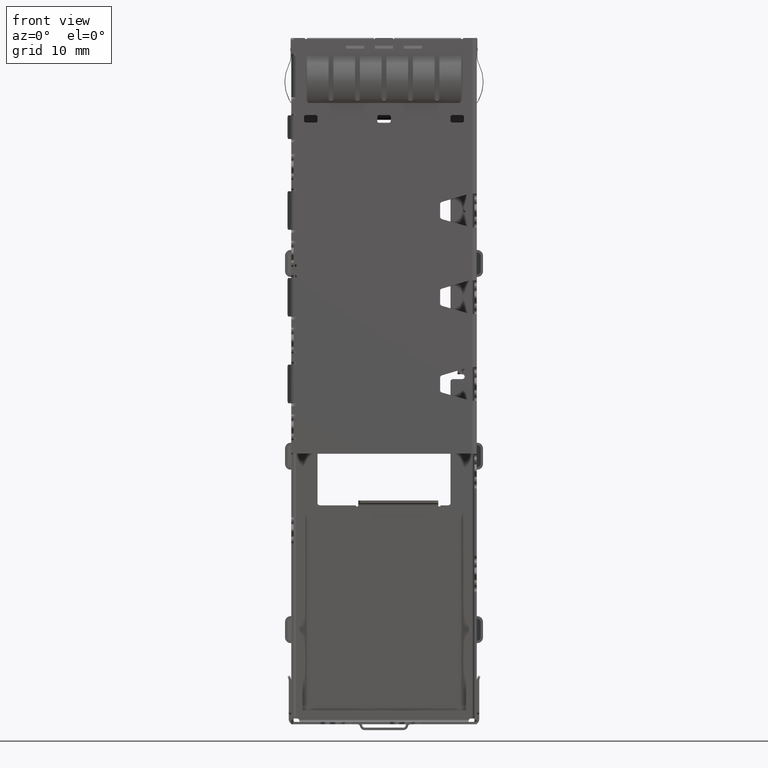
[diagram: clean part render]
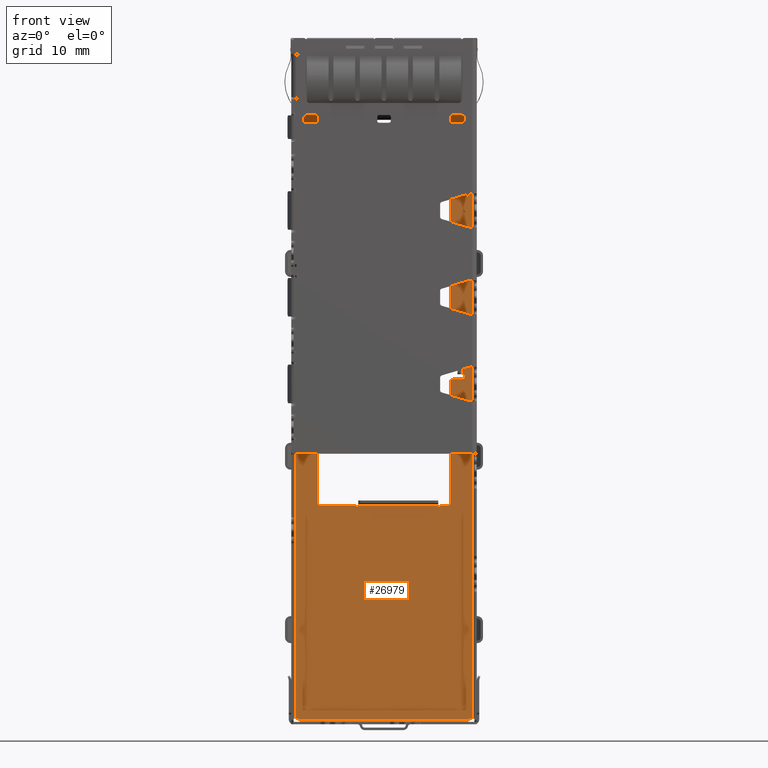
[diagram: same view with one face highlighted and labeled with its STEP entity id]
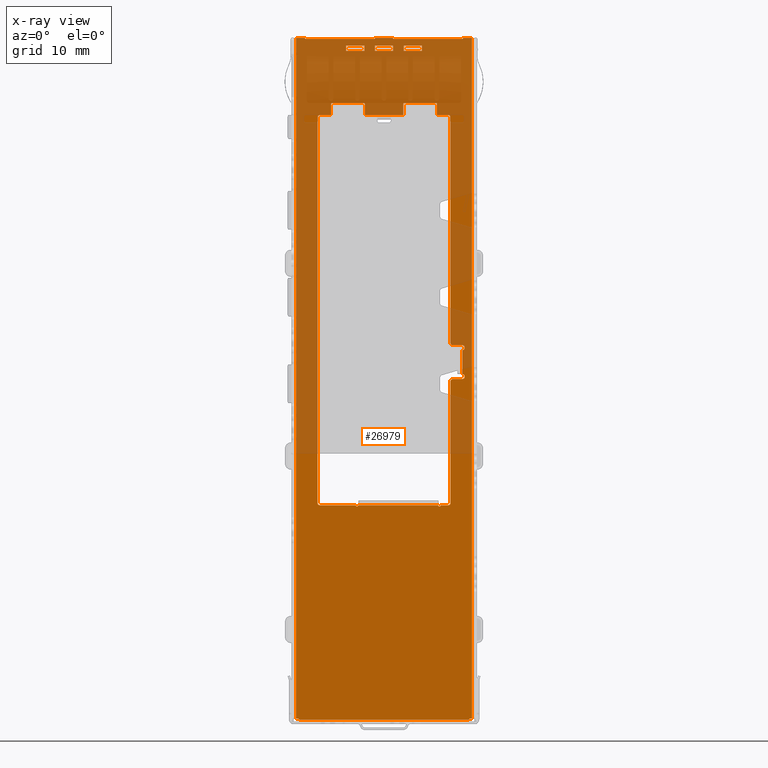
[diagram: x-ray of the same camera — body ghosted, the highlighted face saturated]
A machine part, front view. The second image highlights one B-rep face of the part: STEP entity #26979.
The next image is the same camera in x-ray: the body ghosted, the highlighted face saturated — about 37% of this face is hidden behind the body in this view.
In plain terms, the highlighted planar face has unit normal (0, -1, 0).
Its self-contained STEP definition (entity closure, byte-faithful):
#53 = AXIS2_PLACEMENT_3D ( 'NONE', #49789, #61333, #7563 ) ;
#523 = CARTESIAN_POINT ( 'NONE',  ( 5.400000000000000355, 9.150000000000000355, -6.850000000000000533 ) ) ;
#535 = CARTESIAN_POINT ( 'NONE',  ( -9.125000000000000000, 9.150000000000000355, 0.0000000000000000000 ) ) ;
#603 = EDGE_CURVE ( 'NONE', #43315, #46679, #68325, .T. ) ;
#734 = CARTESIAN_POINT ( 'NONE',  ( 6.649999999999999467, 9.150000000000000355, -8.000000000000000000 ) ) ;
#757 = DIRECTION ( 'NONE',  ( 0.0000000000000000000, 0.0000000000000000000, -1.000000000000000000 ) ) ;
#790 = CARTESIAN_POINT ( 'NONE',  ( -3.950000000000000178, 9.150000000000000355, -70.96999999999999886 ) ) ;
#986 = VECTOR ( 'NONE', #1740, 1000.000000000000000 ) ;
#1044 = VECTOR ( 'NONE', #12786, 1000.000000000000000 ) ;
#1375 = CARTESIAN_POINT ( 'NONE',  ( 2.000000000000000000, 9.150000000000000355, -6.750000000000000000 ) ) ;
#1432 = EDGE_CURVE ( 'NONE', #4398, #26246, #12142, .T. ) ;
#1451 = CARTESIAN_POINT ( 'NONE',  ( -2.925000000000000266, 9.150000000000000355, -48.50000000000000000 ) ) ;
#1500 = CARTESIAN_POINT ( 'NONE',  ( 8.125000000000000000, 9.150000000000000355, -32.39999999999999858 ) ) ;
#1614 = EDGE_CURVE ( 'NONE', #41677, #9290, #30385, .T. ) ;
#1644 = LINE ( 'NONE', #535, #34936 ) ;
#1668 = VERTEX_POINT ( 'NONE', #38505 ) ;
#1674 = DIRECTION ( 'NONE',  ( 0.0000000000000000000, 0.0000000000000000000, -1.000000000000000000 ) ) ;
#1683 = CARTESIAN_POINT ( 'NONE',  ( 9.050000000000000711, 9.150000000000000355, -70.62000000000000455 ) ) ;
#1740 = DIRECTION ( 'NONE',  ( 1.000000000000000000, 0.0000000000000000000, -1.224646799147351975E-16 ) ) ;
#1824 = ORIENTED_EDGE ( 'NONE', *, *, #65324, .F. ) ;
#1911 = VECTOR ( 'NONE', #14583, 1000.000000000000000 ) ;
#2111 = ORIENTED_EDGE ( 'NONE', *, *, #58626, .T. ) ;
#2236 = EDGE_CURVE ( 'NONE', #52283, #15476, #63063, .T. ) ;
#2579 = EDGE_CURVE ( 'NONE', #43315, #26636, #16773, .T. ) ;
#2619 = DIRECTION ( 'NONE',  ( 0.0000000000000000000, -1.000000000000000000, 0.0000000000000000000 ) ) ;
#2793 = ORIENTED_EDGE ( 'NONE', *, *, #40218, .F. ) ;
#3039 = AXIS2_PLACEMENT_3D ( 'NONE', #15722, #47935, #32007 ) ;
#3187 = DIRECTION ( 'NONE',  ( 0.0000000000000000000, 1.000000000000000000, 0.0000000000000000000 ) ) ;
#3365 = EDGE_CURVE ( 'NONE', #60256, #65585, #31707, .T. ) ;
#3455 = LINE ( 'NONE', #67800, #58590 ) ;
#3716 = EDGE_CURVE ( 'NONE', #7042, #6598, #49278, .T. ) ;
#3759 = CARTESIAN_POINT ( 'NONE',  ( -6.649999999999999467, 9.150000000000000355, -8.250000000000000000 ) ) ;
#3940 = VERTEX_POINT ( 'NONE', #50301 ) ;
#4149 = DIRECTION ( 'NONE',  ( 0.0000000000000000000, -1.000000000000000000, 0.0000000000000000000 ) ) ;
#4177 = AXIS2_PLACEMENT_3D ( 'NONE', #53085, #31939, #58481 ) ;
#4216 = CARTESIAN_POINT ( 'NONE',  ( 2.100000000000000089, 9.150000000000000355, -6.850000000000000533 ) ) ;
#4331 = ORIENTED_EDGE ( 'NONE', *, *, #11635, .T. ) ;
#4398 = VERTEX_POINT ( 'NONE', #25075 ) ;
#4695 = DIRECTION ( 'NONE',  ( 0.0000000000000000000, 0.0000000000000000000, -1.000000000000000000 ) ) ;
#4717 = DIRECTION ( 'NONE',  ( 1.000000000000000000, 0.0000000000000000000, 0.0000000000000000000 ) ) ;
#4726 = DIRECTION ( 'NONE',  ( -1.000000000000000000, 0.0000000000000000000, 0.0000000000000000000 ) ) ;
#4837 = VERTEX_POINT ( 'NONE', #36381 ) ;
#4844 = CARTESIAN_POINT ( 'NONE',  ( -2.674999999999999822, 9.150000000000000355, -48.50000000000000000 ) ) ;
#4870 = DIRECTION ( 'NONE',  ( -1.971276677246379901E-16, 0.0000000000000000000, -1.000000000000000000 ) ) ;
#5608 = CARTESIAN_POINT ( 'NONE',  ( 6.899999999999999467, 9.150000000000000355, -31.64999999999999858 ) ) ;
#5761 = ORIENTED_EDGE ( 'NONE', *, *, #43987, .F. ) ;
#5764 = VERTEX_POINT ( 'NONE', #46506 ) ;
#5778 = EDGE_CURVE ( 'NONE', #21400, #20888, #57394, .T. ) ;
#5951 = VECTOR ( 'NONE', #42635, 1000.000000000000000 ) ;
#6059 = CARTESIAN_POINT ( 'NONE',  ( 6.400000000000000355, 9.150000000000000355, -8.000000000000000000 ) ) ;
#6173 = DIRECTION ( 'NONE',  ( 0.0000000000000000000, 0.0000000000000000000, -1.000000000000000000 ) ) ;
#6225 = CIRCLE ( 'NONE', #3039, 0.1000000000000000056 ) ;
#6359 = ORIENTED_EDGE ( 'NONE', *, *, #31889, .F. ) ;
#6598 = VERTEX_POINT ( 'NONE', #734 ) ;
#6656 = CIRCLE ( 'NONE', #14942, 0.1250000000000001110 ) ;
#6922 = CARTESIAN_POINT ( 'NONE',  ( -9.050000000000000711, 9.150000000000000355, -70.62000000000000455 ) ) ;
#6952 = CIRCLE ( 'NONE', #14631, 0.1000000000000000056 ) ;
#7042 = VERTEX_POINT ( 'NONE', #31966 ) ;
#7100 = CIRCLE ( 'NONE', #53, 0.2500000000000002220 ) ;
#7137 = ORIENTED_EDGE ( 'NONE', *, *, #1432, .T. ) ;
#7293 = DIRECTION ( 'NONE',  ( 0.0000000000000000000, -1.000000000000000000, 0.0000000000000000000 ) ) ;
#7539 = VERTEX_POINT ( 'NONE', #32114 ) ;
#7563 = DIRECTION ( 'NONE',  ( 0.0000000000000000000, 0.0000000000000000000, -1.000000000000000000 ) ) ;
#7617 = CARTESIAN_POINT ( 'NONE',  ( 0.9500000000000130562, 9.150000000000000355, -70.96999999999999886 ) ) ;
#7776 = CARTESIAN_POINT ( 'NONE',  ( 6.899999999999999467, 9.150000000000000355, -35.64999999999999858 ) ) ;
#8334 = CARTESIAN_POINT ( 'NONE',  ( 8.125000000000000000, 9.150000000000000355, -31.89999999999999858 ) ) ;
#8416 = VERTEX_POINT ( 'NONE', #69220 ) ;
#8455 = CIRCLE ( 'NONE', #36208, 0.2999999999999947153 ) ;
#8498 = DIRECTION ( 'NONE',  ( 0.0000000000000000000, 0.0000000000000000000, -1.000000000000000000 ) ) ;
#9290 = VERTEX_POINT ( 'NONE', #62147 ) ;
#9329 = CARTESIAN_POINT ( 'NONE',  ( -0.8385983181181020374, 9.150000000000000355, -0.09999999999999820144 ) ) ;
#9394 = DIRECTION ( 'NONE',  ( 0.0000000000000000000, 0.0000000000000000000, -1.000000000000000000 ) ) ;
#9700 = CARTESIAN_POINT ( 'NONE',  ( 8.375000000000000000, 9.150000000000000355, -31.89999999999999858 ) ) ;
#9779 = PLANE ( 'NONE',  #33050 ) ;
#9790 = CIRCLE ( 'NONE', #54703, 0.2999999999999947153 ) ;
#9853 = CARTESIAN_POINT ( 'NONE',  ( 6.899999999999999467, 9.150000000000000355, -48.25000000000000000 ) ) ;
#10264 = ORIENTED_EDGE ( 'NONE', *, *, #68865, .T. ) ;
#10329 = DIRECTION ( 'NONE',  ( 0.0000000000000000000, -1.000000000000000000, 0.0000000000000000000 ) ) ;
#10483 = CARTESIAN_POINT ( 'NONE',  ( -0.9500000000000130562, 9.150000000000000355, -70.96999999999999886 ) ) ;
#10579 = EDGE_CURVE ( 'NONE', #42864, #42195, #27558, .T. ) ;
#10635 = DIRECTION ( 'NONE',  ( 0.0000000000000000000, -1.000000000000000000, 0.0000000000000000000 ) ) ;
#10724 = VERTEX_POINT ( 'NONE', #39311 ) ;
#10848 = ORIENTED_EDGE ( 'NONE', *, *, #49648, .F. ) ;
#10987 = CIRCLE ( 'NONE', #11076, 0.1000000000000000056 ) ;
#11037 = CARTESIAN_POINT ( 'NONE',  ( 8.125000000000000000, 9.150000000000000355, -35.14999999999999858 ) ) ;
#11050 = VERTEX_POINT ( 'NONE', #64132 ) ;
#11076 = AXIS2_PLACEMENT_3D ( 'NONE', #59893, #11948, #38954 ) ;
#11143 = EDGE_CURVE ( 'NONE', #57184, #20486, #15085, .T. ) ;
#11233 = ORIENTED_EDGE ( 'NONE', *, *, #3716, .F. ) ;
#11253 = VERTEX_POINT ( 'NONE', #7776 ) ;
#11402 = CARTESIAN_POINT ( 'NONE',  ( 6.649999999999999467, 9.150000000000000355, -48.25000000000000000 ) ) ;
#11487 = DIRECTION ( 'NONE',  ( 0.0000000000000000000, 0.0000000000000000000, -1.000000000000000000 ) ) ;
#11518 = ORIENTED_EDGE ( 'NONE', *, *, #30978, .F. ) ;
#11633 = DIRECTION ( 'NONE',  ( 0.0000000000000000000, 0.0000000000000000000, -1.000000000000000000 ) ) ;
#11635 = EDGE_CURVE ( 'NONE', #68194, #52863, #34172, .T. ) ;
#11677 = CARTESIAN_POINT ( 'NONE',  ( 6.649999999999999467, 9.150000000000000355, -48.50000000000000000 ) ) ;
#11948 = DIRECTION ( 'NONE',  ( 0.0000000000000000000, 1.000000000000000000, 0.0000000000000000000 ) ) ;
#11998 = LINE ( 'NONE', #24544, #19465 ) ;
#12082 = DIRECTION ( 'NONE',  ( -1.734723475976804876E-16, 0.0000000000000000000, 1.000000000000000000 ) ) ;
#12142 = CIRCLE ( 'NONE', #4177, 0.1000000000000000056 ) ;
#12190 = CARTESIAN_POINT ( 'NONE',  ( 8.125000000000000000, 9.150000000000000355, -32.39999999999999858 ) ) ;
#12398 = CARTESIAN_POINT ( 'NONE',  ( -9.125000000000000000, 9.150000000000000355, 0.0000000000000000000 ) ) ;
#12407 = VERTEX_POINT ( 'NONE', #26286 ) ;
#12427 = EDGE_CURVE ( 'NONE', #17559, #11253, #39052, .T. ) ;
#12621 = CARTESIAN_POINT ( 'NONE',  ( 8.291421356237309581, 9.150000000000000355, 0.0000000000000000000 ) ) ;
#12705 = CARTESIAN_POINT ( 'NONE',  ( -0.9252008584965458748, 9.150000000000000355, -0.04999999999999810152 ) ) ;
#12786 = DIRECTION ( 'NONE',  ( 0.0000000000000000000, 0.0000000000000000000, -1.000000000000000000 ) ) ;
#13037 = CARTESIAN_POINT ( 'NONE',  ( -0.9499999999999999556, 9.150000000000000355, -0.8000000000000000444 ) ) ;
#13071 = ORIENTED_EDGE ( 'NONE', *, *, #39976, .T. ) ;
#13322 = DIRECTION ( 'NONE',  ( 0.0000000000000000000, 1.000000000000000000, 0.0000000000000000000 ) ) ;
#13776 = VERTEX_POINT ( 'NONE', #45716 ) ;
#13790 = DIRECTION ( 'NONE',  ( -4.336808689942017736E-15, 0.0000000000000000000, -1.000000000000000000 ) ) ;
#13911 = CARTESIAN_POINT ( 'NONE',  ( 9.125000000000000000, 9.150000000000000355, -70.96999999999999886 ) ) ;
#13915 = CARTESIAN_POINT ( 'NONE',  ( 8.125000000000000000, 9.150000000000000355, -34.89999999999999858 ) ) ;
#13931 = ORIENTED_EDGE ( 'NONE', *, *, #47088, .F. ) ;
#14016 = ORIENTED_EDGE ( 'NONE', *, *, #1614, .F. ) ;
#14048 = LINE ( 'NONE', #38306, #60092 ) ;
#14453 = VECTOR ( 'NONE', #60694, 1000.000000000000000 ) ;
#14523 = AXIS2_PLACEMENT_3D ( 'NONE', #66916, #13322, #13790 ) ;
#14583 = DIRECTION ( 'NONE',  ( 1.000000000000000000, 0.0000000000000000000, 0.0000000000000000000 ) ) ;
#14631 = AXIS2_PLACEMENT_3D ( 'NONE', #69021, #10329, #52833 ) ;
#14632 = EDGE_CURVE ( 'NONE', #59869, #7539, #40428, .T. ) ;
#14656 = DIRECTION ( 'NONE',  ( 0.0000000000000000000, 0.0000000000000000000, -1.000000000000000000 ) ) ;
#14702 = CARTESIAN_POINT ( 'NONE',  ( -2.050000000000000266, 9.150000000000000355, -0.8000000000000000444 ) ) ;
#14716 = VECTOR ( 'NONE', #6173, 1000.000000000000000 ) ;
#14735 = VECTOR ( 'NONE', #34391, 1000.000000000000000 ) ;
#14752 = VECTOR ( 'NONE', #4726, 1000.000000000000000 ) ;
#14882 = CARTESIAN_POINT ( 'NONE',  ( -0.8385983181181020374, 9.150000000000000355, 1.835624155907465036E-15 ) ) ;
#14942 = AXIS2_PLACEMENT_3D ( 'NONE', #57528, #30538, #9394 ) ;
#14966 = ORIENTED_EDGE ( 'NONE', *, *, #51195, .F. ) ;
#15085 = LINE ( 'NONE', #44167, #40112 ) ;
#15096 = VECTOR ( 'NONE', #31801, 1000.000000000000000 ) ;
#15109 = LINE ( 'NONE', #18238, #986 ) ;
#15124 = DIRECTION ( 'NONE',  ( 0.0000000000000000000, 0.0000000000000000000, 1.000000000000000000 ) ) ;
#15296 = FACE_BOUND ( 'NONE', #16238, .T. ) ;
#15336 = VERTEX_POINT ( 'NONE', #63541 ) ;
#15382 = LINE ( 'NONE', #40398, #68984 ) ;
#15476 = VERTEX_POINT ( 'NONE', #37686 ) ;
#15628 = CARTESIAN_POINT ( 'NONE',  ( 6.400000000000000355, 9.150000000000000355, -8.000000000000000000 ) ) ;
#15719 = CARTESIAN_POINT ( 'NONE',  ( 8.291421356237309581, 9.150000000000000355, -0.1000000000000000056 ) ) ;
#15722 = CARTESIAN_POINT ( 'NONE',  ( -8.108578643762688998, 9.150000000000000355, 2.032879073410320025E-15 ) ) ;
#15805 = ORIENTED_EDGE ( 'NONE', *, *, #14632, .T. ) ;
#15822 = DIRECTION ( 'NONE',  ( 0.0000000000000000000, 0.0000000000000000000, 1.000000000000000000 ) ) ;
#15896 = VECTOR ( 'NONE', #62519, 1000.000000000000000 ) ;
#16165 = ORIENTED_EDGE ( 'NONE', *, *, #18942, .F. ) ;
#16194 = FACE_BOUND ( 'NONE', #39648, .T. ) ;
#16219 = DIRECTION ( 'NONE',  ( 0.7071067811865525687, 0.0000000000000000000, 0.7071067811865425767 ) ) ;
#16238 = EDGE_LOOP ( 'NONE', ( #14966, #18889, #42259, #13931 ) ) ;
#16537 = EDGE_CURVE ( 'NONE', #15336, #42864, #16657, .T. ) ;
#16571 = DIRECTION ( 'NONE',  ( 0.0000000000000000000, 1.000000000000000000, 0.0000000000000000000 ) ) ;
#16657 = LINE ( 'NONE', #7617, #18322 ) ;
#16773 = LINE ( 'NONE', #59067, #5951 ) ;
#17037 = VERTEX_POINT ( 'NONE', #53363 ) ;
#17114 = CIRCLE ( 'NONE', #64873, 0.2500000000000002220 ) ;
#17424 = AXIS2_PLACEMENT_3D ( 'NONE', #47319, #53237, #58860 ) ;
#17435 = ORIENTED_EDGE ( 'NONE', *, *, #30465, .F. ) ;
#17452 = LINE ( 'NONE', #9700, #65193 ) ;
#17557 = CARTESIAN_POINT ( 'NONE',  ( 6.400000000000000355, 9.150000000000000355, -8.000000000000000000 ) ) ;
#17559 = VERTEX_POINT ( 'NONE', #9853 ) ;
#17942 = DIRECTION ( 'NONE',  ( 0.0000000000000000000, -1.000000000000000000, 0.0000000000000000000 ) ) ;
#17988 = VECTOR ( 'NONE', #66166, 1000.000000000000000 ) ;
#18238 = CARTESIAN_POINT ( 'NONE',  ( 0.9000000000000000222, 9.150000000000000355, 1.622707269378834942E-15 ) ) ;
#18322 = VECTOR ( 'NONE', #34126, 1000.000000000000000 ) ;
#18846 = EDGE_CURVE ( 'NONE', #15476, #30058, #53080, .T. ) ;
#18889 = ORIENTED_EDGE ( 'NONE', *, *, #10579, .F. ) ;
#18942 = EDGE_CURVE ( 'NONE', #11050, #24380, #45513, .T. ) ;
#18985 = CARTESIAN_POINT ( 'NONE',  ( 8.125000000000000000, 9.150000000000000355, -35.14999999999999858 ) ) ;
#19093 = DIRECTION ( 'NONE',  ( 0.0000000000000000000, -1.000000000000000000, 0.0000000000000000000 ) ) ;
#19225 = CARTESIAN_POINT ( 'NONE',  ( -6.899999999999999467, 9.150000000000000355, -8.250000000000000000 ) ) ;
#19228 = AXIS2_PLACEMENT_3D ( 'NONE', #523, #42931, #27246 ) ;
#19465 = VECTOR ( 'NONE', #35912, 1000.000000000000000 ) ;
#19486 = VERTEX_POINT ( 'NONE', #13915 ) ;
#19638 = EDGE_CURVE ( 'NONE', #54754, #8416, #27847, .T. ) ;
#20054 = CIRCLE ( 'NONE', #29777, 0.09999999999999999167 ) ;
#20089 = CARTESIAN_POINT ( 'NONE',  ( -6.899999999999999467, 9.150000000000000355, -48.25000000000000000 ) ) ;
#20217 = ORIENTED_EDGE ( 'NONE', *, *, #20952, .T. ) ;
#20252 = LINE ( 'NONE', #26495, #23598 ) ;
#20486 = VERTEX_POINT ( 'NONE', #14702 ) ;
#20528 = CARTESIAN_POINT ( 'NONE',  ( 7.150000000000000355, 9.150000000000000355, -35.39999999999999858 ) ) ;
#20545 = CARTESIAN_POINT ( 'NONE',  ( -8.179289321881340058, 9.150000000000000355, -0.07071067811865310027 ) ) ;
#20551 = ORIENTED_EDGE ( 'NONE', *, *, #52011, .T. ) ;
#20686 = LINE ( 'NONE', #35042, #56693 ) ;
#20735 = ORIENTED_EDGE ( 'NONE', *, *, #55944, .F. ) ;
#20888 = VERTEX_POINT ( 'NONE', #54877 ) ;
#20952 = EDGE_CURVE ( 'NONE', #65510, #10724, #54492, .T. ) ;
#21239 = VECTOR ( 'NONE', #49297, 1000.000000000000000 ) ;
#21400 = VERTEX_POINT ( 'NONE', #34347 ) ;
#21760 = VECTOR ( 'NONE', #42476, 1000.000000000000000 ) ;
#22134 = ORIENTED_EDGE ( 'NONE', *, *, #38913, .F. ) ;
#22601 = VECTOR ( 'NONE', #60135, 1000.000000000000000 ) ;
#22605 = AXIS2_PLACEMENT_3D ( 'NONE', #4216, #68041, #46889 ) ;
#22886 = DIRECTION ( 'NONE',  ( -1.000000000000000000, 0.0000000000000000000, 0.0000000000000000000 ) ) ;
#22957 = CARTESIAN_POINT ( 'NONE',  ( -9.125000000000000000, 9.150000000000000355, -1.350000000000000089 ) ) ;
#23064 = LINE ( 'NONE', #12190, #14716 ) ;
#23289 = AXIS2_PLACEMENT_3D ( 'NONE', #3759, #19093, #40550 ) ;
#23502 = CARTESIAN_POINT ( 'NONE',  ( 9.125000000000000000, 9.150000000000000355, -70.62000000000000455 ) ) ;
#23533 = EDGE_CURVE ( 'NONE', #35080, #33300, #36458, .T. ) ;
#23598 = VECTOR ( 'NONE', #64218, 1000.000000000000000 ) ;
#24055 = ORIENTED_EDGE ( 'NONE', *, *, #5778, .T. ) ;
#24104 = CARTESIAN_POINT ( 'NONE',  ( -3.950000000000000178, 9.150000000000000355, -0.8000000000000000444 ) ) ;
#24280 = ORIENTED_EDGE ( 'NONE', *, *, #18846, .F. ) ;
#24380 = VERTEX_POINT ( 'NONE', #30699 ) ;
#24463 = ORIENTED_EDGE ( 'NONE', *, *, #11143, .F. ) ;
#24544 = CARTESIAN_POINT ( 'NONE',  ( 6.899999999999999467, 9.150000000000000355, -48.25000000000000000 ) ) ;
#24558 = EDGE_LOOP ( 'NONE', ( #31821, #7137, #52114, #27026, #13071, #51026, #30818, #20735, #37785, #61251, #17435, #46481, #41703, #32226, #51568, #29724, #30590, #30210, #36973, #11518, #27086, #6359 ) ) ;
#25075 = CARTESIAN_POINT ( 'NONE',  ( 0.9252008584965458748, 9.150000000000000355, -0.04999999999999819866 ) ) ;
#25115 = CARTESIAN_POINT ( 'NONE',  ( 1.011803398874989934, 9.150000000000000355, -0.1000000000000030032 ) ) ;
#25366 = DIRECTION ( 'NONE',  ( 1.000000000000000000, 0.0000000000000000000, 0.0000000000000000000 ) ) ;
#25411 = VECTOR ( 'NONE', #15822, 1000.000000000000000 ) ;
#25782 = LINE ( 'NONE', #10483, #59367 ) ;
#26027 = LINE ( 'NONE', #40940, #1911 ) ;
#26055 = CARTESIAN_POINT ( 'NONE',  ( -9.125000000000000000, 9.150000000000000355, -70.96999999999999886 ) ) ;
#26168 = EDGE_CURVE ( 'NONE', #8416, #59481, #7100, .T. ) ;
#26246 = VERTEX_POINT ( 'NONE', #56377 ) ;
#26286 = CARTESIAN_POINT ( 'NONE',  ( -9.125000000000000000, 9.150000000000000355, 0.0000000000000000000 ) ) ;
#26354 = AXIS2_PLACEMENT_3D ( 'NONE', #57642, #36213, #31315 ) ;
#26495 = CARTESIAN_POINT ( 'NONE',  ( -9.125000000000000000, 9.150000000000000355, -0.8000000000000000444 ) ) ;
#26636 = VERTEX_POINT ( 'NONE', #1683 ) ;
#26979 = ADVANCED_FACE ( 'NONE', ( #55498, #41202, #15296, #16194, #62976 ), #9779, .T. ) ;
#27026 = ORIENTED_EDGE ( 'NONE', *, *, #41404, .T. ) ;
#27067 = EDGE_CURVE ( 'NONE', #57179, #58668, #20252, .T. ) ;
#27086 = ORIENTED_EDGE ( 'NONE', *, *, #65728, .T. ) ;
#27104 = LINE ( 'NONE', #790, #50541 ) ;
#27147 = AXIS2_PLACEMENT_3D ( 'NONE', #15719, #10635, #43045 ) ;
#27152 = CARTESIAN_POINT ( 'NONE',  ( 6.649999999999999467, 9.150000000000000355, -8.250000000000000000 ) ) ;
#27219 = EDGE_CURVE ( 'NONE', #13776, #5764, #45316, .T. ) ;
#27246 = DIRECTION ( 'NONE',  ( 0.0000000000000000000, 0.0000000000000000000, -1.000000000000000000 ) ) ;
#27482 = VERTEX_POINT ( 'NONE', #40040 ) ;
#27558 = LINE ( 'NONE', #38380, #54419 ) ;
#27580 = DIRECTION ( 'NONE',  ( -1.000000000000000000, 0.0000000000000000000, 0.0000000000000000000 ) ) ;
#27847 = CIRCLE ( 'NONE', #65985, 0.2500000000000002220 ) ;
#27936 = CARTESIAN_POINT ( 'NONE',  ( -2.000000000000000000, 9.150000000000000355, -6.850000000000000533 ) ) ;
#27959 = LINE ( 'NONE', #63637, #69082 ) ;
#27989 = CARTESIAN_POINT ( 'NONE',  ( -2.100000000000000089, 9.150000000000000355, -6.750000000000000000 ) ) ;
#28978 = LINE ( 'NONE', #68729, #68439 ) ;
#29070 = DIRECTION ( 'NONE',  ( 0.0000000000000000000, 0.0000000000000000000, -1.000000000000000000 ) ) ;
#29081 = VERTEX_POINT ( 'NONE', #62273 ) ;
#29248 = CARTESIAN_POINT ( 'NONE',  ( -5.500000000000000000, 9.150000000000000355, -6.850000000000000533 ) ) ;
#29373 = LINE ( 'NONE', #62885, #47770 ) ;
#29451 = EDGE_CURVE ( 'NONE', #65747, #4398, #48970, .T. ) ;
#29625 = CARTESIAN_POINT ( 'NONE',  ( 3.950000000000000178, 9.150000000000000355, -0.8000000000000000444 ) ) ;
#29719 = CARTESIAN_POINT ( 'NONE',  ( 8.108578643762688998, 9.150000000000000355, -0.1000000000000030032 ) ) ;
#29724 = ORIENTED_EDGE ( 'NONE', *, *, #2579, .F. ) ;
#29777 = AXIS2_PLACEMENT_3D ( 'NONE', #9329, #63539, #14656 ) ;
#29873 = VERTEX_POINT ( 'NONE', #48959 ) ;
#30058 = VERTEX_POINT ( 'NONE', #55628 ) ;
#30193 = CARTESIAN_POINT ( 'NONE',  ( -6.649999999999999467, 9.150000000000000355, -48.50000000000000000 ) ) ;
#30210 = ORIENTED_EDGE ( 'NONE', *, *, #50247, .F. ) ;
#30326 = EDGE_CURVE ( 'NONE', #13776, #4837, #57297, .T. ) ;
#30385 = LINE ( 'NONE', #48361, #21239 ) ;
#30465 = EDGE_CURVE ( 'NONE', #37301, #12407, #39632, .T. ) ;
#30538 = DIRECTION ( 'NONE',  ( 0.0000000000000000000, -1.000000000000000000, 0.0000000000000000000 ) ) ;
#30590 = ORIENTED_EDGE ( 'NONE', *, *, #603, .T. ) ;
#30664 = CARTESIAN_POINT ( 'NONE',  ( -0.9499999999999999556, 9.150000000000000355, -1.350000000000000089 ) ) ;
#30699 = CARTESIAN_POINT ( 'NONE',  ( 3.950000000000000178, 9.150000000000000355, -1.350000000000000089 ) ) ;
#30792 = CIRCLE ( 'NONE', #33904, 0.2500000000000002220 ) ;
#30818 = ORIENTED_EDGE ( 'NONE', *, *, #31041, .T. ) ;
#30898 = LINE ( 'NONE', #15628, #21760 ) ;
#30916 = ORIENTED_EDGE ( 'NONE', *, *, #12427, .F. ) ;
#30948 = VECTOR ( 'NONE', #49296, 1000.000000000000000 ) ;
#30969 = DIRECTION ( 'NONE',  ( 8.673617379884039170E-17, 0.0000000000000000000, -1.000000000000000000 ) ) ;
#30978 = EDGE_CURVE ( 'NONE', #67616, #33100, #57177, .T. ) ;
#31041 = EDGE_CURVE ( 'NONE', #35080, #56343, #6225, .T. ) ;
#31106 = CARTESIAN_POINT ( 'NONE',  ( -6.649999999999999467, 9.150000000000000355, -48.25000000000000000 ) ) ;
#31161 = VECTOR ( 'NONE', #16219, 1000.000000000000000 ) ;
#31241 = VECTOR ( 'NONE', #50863, 1000.000000000000000 ) ;
#31315 = DIRECTION ( 'NONE',  ( 0.0000000000000000000, 0.0000000000000000000, -1.000000000000000000 ) ) ;
#31391 = CARTESIAN_POINT ( 'NONE',  ( 5.500000000000000000, 9.150000000000000355, -6.850000000000000533 ) ) ;
#31429 = EDGE_CURVE ( 'NONE', #55480, #3940, #6952, .T. ) ;
#31707 = LINE ( 'NONE', #54744, #22601 ) ;
#31801 = DIRECTION ( 'NONE',  ( -1.000000000000000000, 0.0000000000000000000, 0.0000000000000000000 ) ) ;
#31821 = ORIENTED_EDGE ( 'NONE', *, *, #29451, .T. ) ;
#31889 = EDGE_CURVE ( 'NONE', #65747, #53261, #26027, .T. ) ;
#31939 = DIRECTION ( 'NONE',  ( 0.0000000000000000000, -1.000000000000000000, 0.0000000000000000000 ) ) ;
#31966 = CARTESIAN_POINT ( 'NONE',  ( 6.899999999999999467, 9.150000000000000355, -8.250000000000000000 ) ) ;
#32007 = DIRECTION ( 'NONE',  ( 0.0000000000000000000, 0.0000000000000000000, -1.000000000000000000 ) ) ;
#32114 = CARTESIAN_POINT ( 'NONE',  ( 7.150000000000000355, 9.150000000000000355, -31.89999999999999858 ) ) ;
#32226 = ORIENTED_EDGE ( 'NONE', *, *, #44601, .F. ) ;
#32274 = DIRECTION ( 'NONE',  ( 0.0000000000000000000, -1.000000000000000000, 0.0000000000000000000 ) ) ;
#32699 = AXIS2_PLACEMENT_3D ( 'NONE', #66170, #17942, #1674 ) ;
#32934 = EDGE_CURVE ( 'NONE', #38499, #33100, #68693, .T. ) ;
#33050 = AXIS2_PLACEMENT_3D ( 'NONE', #68929, #63299, #46865 ) ;
#33100 = VERTEX_POINT ( 'NONE', #59494 ) ;
#33293 = EDGE_CURVE ( 'NONE', #24380, #57179, #3455, .T. ) ;
#33300 = VERTEX_POINT ( 'NONE', #41246 ) ;
#33338 = CIRCLE ( 'NONE', #23289, 0.2500000000000002220 ) ;
#33345 = ORIENTED_EDGE ( 'NONE', *, *, #57306, .F. ) ;
#33371 = DIRECTION ( 'NONE',  ( 0.0000000000000000000, 0.0000000000000000000, 1.000000000000000000 ) ) ;
#33381 = LINE ( 'NONE', #62298, #15896 ) ;
#33463 = LINE ( 'NONE', #17557, #67894 ) ;
#33884 = EDGE_CURVE ( 'NONE', #7539, #54754, #17452, .T. ) ;
#33904 = AXIS2_PLACEMENT_3D ( 'NONE', #11402, #49184, #11633 ) ;
#34126 = DIRECTION ( 'NONE',  ( -1.971276677246379901E-16, 0.0000000000000000000, 1.000000000000000000 ) ) ;
#34172 = CIRCLE ( 'NONE', #19228, 0.1000000000000002554 ) ;
#34217 = CARTESIAN_POINT ( 'NONE',  ( 9.050000000000000711, 9.150000000000000355, -70.92000000000000171 ) ) ;
#34325 = LINE ( 'NONE', #34868, #1044 ) ;
#34347 = CARTESIAN_POINT ( 'NONE',  ( 8.375000000000000000, 9.150000000000000355, -35.14999999999999858 ) ) ;
#34391 = DIRECTION ( 'NONE',  ( 0.0000000000000000000, 0.0000000000000000000, 1.000000000000000000 ) ) ;
#34520 = EDGE_CURVE ( 'NONE', #12407, #3940, #1644, .T. ) ;
#34582 = DIRECTION ( 'NONE',  ( -1.000000000000000000, 0.0000000000000000000, 0.0000000000000000000 ) ) ;
#34648 = ORIENTED_EDGE ( 'NONE', *, *, #3365, .F. ) ;
#34868 = CARTESIAN_POINT ( 'NONE',  ( 2.050000000000000266, 9.150000000000000355, -70.96999999999999886 ) ) ;
#34878 = CARTESIAN_POINT ( 'NONE',  ( -2.000000000000000000, 9.150000000000000355, -6.750000000000000000 ) ) ;
#34936 = VECTOR ( 'NONE', #43186, 1000.000000000000000 ) ;
#35042 = CARTESIAN_POINT ( 'NONE',  ( -9.125000000000000000, 9.150000000000000355, -70.62000000000000455 ) ) ;
#35080 = VERTEX_POINT ( 'NONE', #40720 ) ;
#35670 = EDGE_LOOP ( 'NONE', ( #45237, #37156, #55883, #16165 ) ) ;
#35894 = LINE ( 'NONE', #42347, #51924 ) ;
#35912 = DIRECTION ( 'NONE',  ( -1.734723475976804876E-16, 0.0000000000000000000, 1.000000000000000000 ) ) ;
#36208 = AXIS2_PLACEMENT_3D ( 'NONE', #39620, #2619, #55829 ) ;
#36213 = DIRECTION ( 'NONE',  ( 0.0000000000000000000, 1.000000000000000000, 0.0000000000000000000 ) ) ;
#36330 = DIRECTION ( 'NONE',  ( 0.0000000000000000000, 1.000000000000000000, 0.0000000000000000000 ) ) ;
#36381 = CARTESIAN_POINT ( 'NONE',  ( 2.100000000000000089, 9.150000000000000355, -6.750000000000000000 ) ) ;
#36449 = ORIENTED_EDGE ( 'NONE', *, *, #19638, .T. ) ;
#36458 = LINE ( 'NONE', #69302, #63377 ) ;
#36605 = CARTESIAN_POINT ( 'NONE',  ( 5.500000000000000000, 9.150000000000000355, -6.750000000000000000 ) ) ;
#36973 = ORIENTED_EDGE ( 'NONE', *, *, #32934, .T. ) ;
#37084 = CARTESIAN_POINT ( 'NONE',  ( 5.500000000000000000, 9.150000000000000355, -8.000000000000000000 ) ) ;
#37156 = ORIENTED_EDGE ( 'NONE', *, *, #27067, .F. ) ;
#37301 = VERTEX_POINT ( 'NONE', #64741 ) ;
#37544 = DIRECTION ( 'NONE',  ( 0.0000000000000000000, 0.0000000000000000000, -1.000000000000000000 ) ) ;
#37656 = VERTEX_POINT ( 'NONE', #30664 ) ;
#37686 = CARTESIAN_POINT ( 'NONE',  ( 5.875000000000000000, 9.150000000000000355, -48.50000000000000000 ) ) ;
#37785 = ORIENTED_EDGE ( 'NONE', *, *, #31429, .T. ) ;
#38027 = VERTEX_POINT ( 'NONE', #12705 ) ;
#38052 = DIRECTION ( 'NONE',  ( 1.000000000000000000, 0.0000000000000000000, 0.0000000000000000000 ) ) ;
#38206 = ORIENTED_EDGE ( 'NONE', *, *, #44595, .F. ) ;
#38306 = CARTESIAN_POINT ( 'NONE',  ( 8.375000000000000000, 9.150000000000000355, -35.39999999999999858 ) ) ;
#38380 = CARTESIAN_POINT ( 'NONE',  ( -9.125000000000000000, 9.150000000000000355, -0.8000000000000000444 ) ) ;
#38499 = VERTEX_POINT ( 'NONE', #12621 ) ;
#38505 = CARTESIAN_POINT ( 'NONE',  ( -5.400000000000000355, 9.150000000000000355, -6.750000000000000000 ) ) ;
#38687 = AXIS2_PLACEMENT_3D ( 'NONE', #31106, #4149, #41419 ) ;
#38913 = EDGE_CURVE ( 'NONE', #9290, #27482, #64713, .T. ) ;
#38954 = DIRECTION ( 'NONE',  ( 4.336808689942017736E-14, 0.0000000000000000000, -1.000000000000000000 ) ) ;
#39052 = LINE ( 'NONE', #44047, #49965 ) ;
#39311 = CARTESIAN_POINT ( 'NONE',  ( -2.000000000000000000, 9.150000000000000355, -8.000000000000000000 ) ) ;
#39469 = LINE ( 'NONE', #65107, #66396 ) ;
#39567 = ORIENTED_EDGE ( 'NONE', *, *, #55236, .F. ) ;
#39620 = CARTESIAN_POINT ( 'NONE',  ( -9.050000000000000711, 9.150000000000000355, -70.92000000000000171 ) ) ;
#39632 = LINE ( 'NONE', #26055, #25411 ) ;
#39638 = ORIENTED_EDGE ( 'NONE', *, *, #44948, .T. ) ;
#39648 = EDGE_LOOP ( 'NONE', ( #57935, #39567, #24463, #10848 ) ) ;
#39788 = ORIENTED_EDGE ( 'NONE', *, *, #51279, .F. ) ;
#39930 = CARTESIAN_POINT ( 'NONE',  ( -2.050000000000000266, 9.150000000000000355, -1.350000000000000089 ) ) ;
#39976 = EDGE_CURVE ( 'NONE', #38027, #33300, #10987, .T. ) ;
#40040 = CARTESIAN_POINT ( 'NONE',  ( -6.649999999999999467, 9.150000000000000355, -8.000000000000000000 ) ) ;
#40112 = VECTOR ( 'NONE', #33371, 1000.000000000000000 ) ;
#40113 = CIRCLE ( 'NONE', #51702, 0.1000000000000000056 ) ;
#40177 = ORIENTED_EDGE ( 'NONE', *, *, #52417, .T. ) ;
#40218 = EDGE_CURVE ( 'NONE', #52354, #60256, #53716, .T. ) ;
#40398 = CARTESIAN_POINT ( 'NONE',  ( -9.125000000000000000, 9.150000000000000355, -0.8000000000000000444 ) ) ;
#40407 = CARTESIAN_POINT ( 'NONE',  ( 7.150000000000000355, 9.150000000000000355, -31.64999999999999858 ) ) ;
#40428 = CIRCLE ( 'NONE', #41705, 0.2500000000000002220 ) ;
#40497 = AXIS2_PLACEMENT_3D ( 'NONE', #18985, #3187, #62051 ) ;
#40550 = DIRECTION ( 'NONE',  ( 0.0000000000000000000, 0.0000000000000000000, -1.000000000000000000 ) ) ;
#40720 = CARTESIAN_POINT ( 'NONE',  ( -8.108578643762688998, 9.150000000000000355, -0.1000000000000030032 ) ) ;
#40727 = EDGE_CURVE ( 'NONE', #5764, #10724, #33463, .T. ) ;
#40904 = ORIENTED_EDGE ( 'NONE', *, *, #45917, .F. ) ;
#40940 = CARTESIAN_POINT ( 'NONE',  ( -9.125000000000000000, 9.150000000000000355, -0.1000000000000030032 ) ) ;
#41003 = VECTOR ( 'NONE', #55262, 1000.000000000000000 ) ;
#41202 = FACE_BOUND ( 'NONE', #65031, .T. ) ;
#41246 = CARTESIAN_POINT ( 'NONE',  ( -1.011803398874989934, 9.150000000000000355, -0.1000000000000030032 ) ) ;
#41305 = AXIS2_PLACEMENT_3D ( 'NONE', #27152, #32274, #43086 ) ;
#41404 = EDGE_CURVE ( 'NONE', #61751, #38027, #20054, .T. ) ;
#41419 = DIRECTION ( 'NONE',  ( 0.0000000000000000000, 0.0000000000000000000, 1.000000000000000000 ) ) ;
#41499 = ORIENTED_EDGE ( 'NONE', *, *, #33884, .T. ) ;
#41535 = CARTESIAN_POINT ( 'NONE',  ( -2.100000000000000089, 9.150000000000000355, -6.850000000000000533 ) ) ;
#41677 = VERTEX_POINT ( 'NONE', #29248 ) ;
#41703 = ORIENTED_EDGE ( 'NONE', *, *, #45821, .F. ) ;
#41705 = AXIS2_PLACEMENT_3D ( 'NONE', #40407, #7293, #8498 ) ;
#41732 = ORIENTED_EDGE ( 'NONE', *, *, #26168, .T. ) ;
#42195 = VERTEX_POINT ( 'NONE', #13037 ) ;
#42259 = ORIENTED_EDGE ( 'NONE', *, *, #16537, .F. ) ;
#42347 = CARTESIAN_POINT ( 'NONE',  ( -9.125000000000000000, 9.150000000000000355, -70.72499999872600540 ) ) ;
#42476 = DIRECTION ( 'NONE',  ( -1.000000000000000000, 0.0000000000000000000, 0.0000000000000000000 ) ) ;
#42635 = DIRECTION ( 'NONE',  ( -1.000000000000000000, 0.0000000000000000000, 0.0000000000000000000 ) ) ;
#42749 = VERTEX_POINT ( 'NONE', #6922 ) ;
#42849 = EDGE_CURVE ( 'NONE', #42749, #37301, #20686, .T. ) ;
#42864 = VERTEX_POINT ( 'NONE', #55731 ) ;
#42929 = ORIENTED_EDGE ( 'NONE', *, *, #40727, .F. ) ;
#42931 = DIRECTION ( 'NONE',  ( 0.0000000000000000000, 1.000000000000000000, 0.0000000000000000000 ) ) ;
#42949 = VERTEX_POINT ( 'NONE', #19225 ) ;
#43045 = DIRECTION ( 'NONE',  ( 0.0000000000000000000, 0.0000000000000000000, -1.000000000000000000 ) ) ;
#43086 = DIRECTION ( 'NONE',  ( 0.0000000000000000000, 0.0000000000000000000, -1.000000000000000000 ) ) ;
#43186 = DIRECTION ( 'NONE',  ( 1.000000000000000000, 0.0000000000000000000, 0.0000000000000000000 ) ) ;
#43315 = VERTEX_POINT ( 'NONE', #23502 ) ;
#43987 = EDGE_CURVE ( 'NONE', #42949, #52354, #29373, .T. ) ;
#44047 = CARTESIAN_POINT ( 'NONE',  ( 6.899999999999999467, 9.150000000000000355, -48.25000000000000000 ) ) ;
#44167 = CARTESIAN_POINT ( 'NONE',  ( -2.050000000000000266, 9.150000000000000355, -70.96999999999999886 ) ) ;
#44297 = LINE ( 'NONE', #22957, #41003 ) ;
#44434 = EDGE_CURVE ( 'NONE', #58668, #11050, #34325, .T. ) ;
#44564 = ORIENTED_EDGE ( 'NONE', *, *, #68659, .F. ) ;
#44595 = EDGE_CURVE ( 'NONE', #45242, #1668, #65338, .T. ) ;
#44601 = EDGE_CURVE ( 'NONE', #29873, #17037, #35894, .T. ) ;
#44948 = EDGE_CURVE ( 'NONE', #52863, #63593, #33381, .T. ) ;
#45050 = CIRCLE ( 'NONE', #17424, 0.2500000000000002220 ) ;
#45237 = ORIENTED_EDGE ( 'NONE', *, *, #44434, .F. ) ;
#45242 = VERTEX_POINT ( 'NONE', #27989 ) ;
#45272 = CIRCLE ( 'NONE', #26354, 0.1000000000000002554 ) ;
#45312 = EDGE_CURVE ( 'NONE', #61751, #26246, #15109, .T. ) ;
#45316 = LINE ( 'NONE', #1375, #14453 ) ;
#45324 = DIRECTION ( 'NONE',  ( -1.000000000000000000, 0.0000000000000000000, 0.0000000000000000000 ) ) ;
#45513 = LINE ( 'NONE', #61923, #31241 ) ;
#45628 = LINE ( 'NONE', #36605, #14752 ) ;
#45716 = CARTESIAN_POINT ( 'NONE',  ( 2.000000000000000000, 9.150000000000000355, -6.850000000000000533 ) ) ;
#45821 = EDGE_CURVE ( 'NONE', #17037, #42749, #8455, .T. ) ;
#45917 = EDGE_CURVE ( 'NONE', #27482, #42949, #33338, .T. ) ;
#46481 = ORIENTED_EDGE ( 'NONE', *, *, #42849, .F. ) ;
#46506 = CARTESIAN_POINT ( 'NONE',  ( 2.000000000000000000, 9.150000000000000355, -8.000000000000000000 ) ) ;
#46679 = VERTEX_POINT ( 'NONE', #52459 ) ;
#46865 = DIRECTION ( 'NONE',  ( 0.0000000000000000000, 0.0000000000000000000, -1.000000000000000000 ) ) ;
#46884 = LINE ( 'NONE', #12398, #30948 ) ;
#46889 = DIRECTION ( 'NONE',  ( 0.0000000000000000000, 0.0000000000000000000, -1.000000000000000000 ) ) ;
#47088 = EDGE_CURVE ( 'NONE', #37656, #15336, #28978, .T. ) ;
#47191 = CARTESIAN_POINT ( 'NONE',  ( 8.179289321881359598, 9.150000000000000355, -0.07071067811864620301 ) ) ;
#47319 = CARTESIAN_POINT ( 'NONE',  ( 7.150000000000000355, 9.150000000000000355, -35.64999999999999858 ) ) ;
#47334 = CARTESIAN_POINT ( 'NONE',  ( 5.400000000000000355, 9.150000000000000355, -6.750000000000000000 ) ) ;
#47770 = VECTOR ( 'NONE', #30969, 1000.000000000000000 ) ;
#47935 = DIRECTION ( 'NONE',  ( 0.0000000000000000000, 1.000000000000000000, 0.0000000000000000000 ) ) ;
#48262 = CIRCLE ( 'NONE', #48804, 0.1000000000000002554 ) ;
#48361 = CARTESIAN_POINT ( 'NONE',  ( -5.500000000000000000, 9.150000000000000355, -6.750000000000000000 ) ) ;
#48480 = DIRECTION ( 'NONE',  ( -1.000000000000000000, 0.0000000000000000000, 0.0000000000000000000 ) ) ;
#48582 = VECTOR ( 'NONE', #29070, 1000.000000000000000 ) ;
#48804 = AXIS2_PLACEMENT_3D ( 'NONE', #41535, #36330, #4695 ) ;
#48926 = CARTESIAN_POINT ( 'NONE',  ( -8.220710678118660297, 9.150000000000000355, -0.02928932188133585163 ) ) ;
#48959 = CARTESIAN_POINT ( 'NONE',  ( 8.822019738786179843, 9.150000000000000355, -70.72499999872600540 ) ) ;
#48970 = CIRCLE ( 'NONE', #14523, 0.1000000000000000056 ) ;
#49184 = DIRECTION ( 'NONE',  ( 0.0000000000000000000, -1.000000000000000000, 0.0000000000000000000 ) ) ;
#49278 = CIRCLE ( 'NONE', #41305, 0.2500000000000002220 ) ;
#49296 = DIRECTION ( 'NONE',  ( 1.000000000000000000, 0.0000000000000000000, 0.0000000000000000000 ) ) ;
#49297 = DIRECTION ( 'NONE',  ( 0.0000000000000000000, 0.0000000000000000000, -1.000000000000000000 ) ) ;
#49648 = EDGE_CURVE ( 'NONE', #29081, #57184, #44297, .T. ) ;
#49789 = CARTESIAN_POINT ( 'NONE',  ( 8.125000000000000000, 9.150000000000000355, -32.14999999999999858 ) ) ;
#49846 = VERTEX_POINT ( 'NONE', #24104 ) ;
#49965 = VECTOR ( 'NONE', #12082, 1000.000000000000000 ) ;
#50247 = EDGE_CURVE ( 'NONE', #38499, #46679, #46884, .T. ) ;
#50301 = CARTESIAN_POINT ( 'NONE',  ( -8.291421356237309581, 9.150000000000000355, 0.0000000000000000000 ) ) ;
#50541 = VECTOR ( 'NONE', #37544, 1000.000000000000000 ) ;
#50668 = ORIENTED_EDGE ( 'NONE', *, *, #51221, .T. ) ;
#50863 = DIRECTION ( 'NONE',  ( 1.000000000000000000, 0.0000000000000000000, 0.0000000000000000000 ) ) ;
#51026 = ORIENTED_EDGE ( 'NONE', *, *, #23533, .F. ) ;
#51195 = EDGE_CURVE ( 'NONE', #42195, #37656, #25782, .T. ) ;
#51221 = EDGE_CURVE ( 'NONE', #65413, #11253, #45050, .T. ) ;
#51279 = EDGE_CURVE ( 'NONE', #30058, #17559, #30792, .T. ) ;
#51439 = CARTESIAN_POINT ( 'NONE',  ( 5.625000000000000000, 9.150000000000000355, -48.50000000000000000 ) ) ;
#51568 = ORIENTED_EDGE ( 'NONE', *, *, #52717, .F. ) ;
#51702 = AXIS2_PLACEMENT_3D ( 'NONE', #62158, #56999, #57692 ) ;
#51924 = VECTOR ( 'NONE', #57873, 1000.000000000000000 ) ;
#52011 = EDGE_CURVE ( 'NONE', #20888, #65413, #14048, .T. ) ;
#52114 = ORIENTED_EDGE ( 'NONE', *, *, #45312, .F. ) ;
#52283 = VERTEX_POINT ( 'NONE', #51439 ) ;
#52354 = VERTEX_POINT ( 'NONE', #20089 ) ;
#52417 = EDGE_CURVE ( 'NONE', #45242, #65510, #48262, .T. ) ;
#52459 = CARTESIAN_POINT ( 'NONE',  ( 9.125000000000000000, 9.150000000000000355, 0.0000000000000000000 ) ) ;
#52701 = CARTESIAN_POINT ( 'NONE',  ( -5.500000000000000000, 9.150000000000000355, -6.750000000000000000 ) ) ;
#52717 = EDGE_CURVE ( 'NONE', #26636, #29873, #9790, .T. ) ;
#52833 = DIRECTION ( 'NONE',  ( 0.0000000000000000000, 0.0000000000000000000, -1.000000000000000000 ) ) ;
#52863 = VERTEX_POINT ( 'NONE', #31391 ) ;
#53080 = LINE ( 'NONE', #11677, #17988 ) ;
#53085 = CARTESIAN_POINT ( 'NONE',  ( 0.8385983181181020374, 9.150000000000000355, -0.09999999999999840961 ) ) ;
#53237 = DIRECTION ( 'NONE',  ( 0.0000000000000000000, -1.000000000000000000, 0.0000000000000000000 ) ) ;
#53261 = VERTEX_POINT ( 'NONE', #29719 ) ;
#53363 = CARTESIAN_POINT ( 'NONE',  ( -8.822019738786179843, 9.150000000000000355, -70.72499999872600540 ) ) ;
#53716 = CIRCLE ( 'NONE', #38687, 0.2500000000000002220 ) ;
#53797 = DIRECTION ( 'NONE',  ( 0.0000000000000000000, 1.000000000000000000, 0.0000000000000000000 ) ) ;
#54419 = VECTOR ( 'NONE', #48480, 1000.000000000000000 ) ;
#54492 = LINE ( 'NONE', #34878, #48582 ) ;
#54703 = AXIS2_PLACEMENT_3D ( 'NONE', #34217, #56518, #56067 ) ;
#54744 = CARTESIAN_POINT ( 'NONE',  ( 6.649999999999999467, 9.150000000000000355, -48.50000000000000000 ) ) ;
#54754 = VERTEX_POINT ( 'NONE', #8334 ) ;
#54877 = CARTESIAN_POINT ( 'NONE',  ( 8.125000000000000000, 9.150000000000000355, -35.39999999999999858 ) ) ;
#54970 = CARTESIAN_POINT ( 'NONE',  ( 2.050000000000000266, 9.150000000000000355, -0.8000000000000000444 ) ) ;
#55236 = EDGE_CURVE ( 'NONE', #20486, #49846, #15382, .T. ) ;
#55262 = DIRECTION ( 'NONE',  ( 1.000000000000000000, 0.0000000000000000000, 0.0000000000000000000 ) ) ;
#55480 = VERTEX_POINT ( 'NONE', #48926 ) ;
#55498 = FACE_OUTER_BOUND ( 'NONE', #24558, .T. ) ;
#55628 = CARTESIAN_POINT ( 'NONE',  ( 6.649999999999999467, 9.150000000000000355, -48.50000000000000000 ) ) ;
#55731 = CARTESIAN_POINT ( 'NONE',  ( 0.9499999999999999556, 9.150000000000000355, -0.8000000000000000444 ) ) ;
#55829 = DIRECTION ( 'NONE',  ( 0.0000000000000000000, 0.0000000000000000000, -1.000000000000000000 ) ) ;
#55883 = ORIENTED_EDGE ( 'NONE', *, *, #33293, .F. ) ;
#55944 = EDGE_CURVE ( 'NONE', #55480, #56343, #39469, .T. ) ;
#56067 = DIRECTION ( 'NONE',  ( 0.0000000000000000000, 0.0000000000000000000, -1.000000000000000000 ) ) ;
#56343 = VERTEX_POINT ( 'NONE', #20545 ) ;
#56377 = CARTESIAN_POINT ( 'NONE',  ( 0.8385983181181020374, 9.150000000000000355, 1.630226806696725077E-15 ) ) ;
#56518 = DIRECTION ( 'NONE',  ( 0.0000000000000000000, -1.000000000000000000, 0.0000000000000000000 ) ) ;
#56554 = ORIENTED_EDGE ( 'NONE', *, *, #61376, .T. ) ;
#56693 = VECTOR ( 'NONE', #34582, 1000.000000000000000 ) ;
#56999 = DIRECTION ( 'NONE',  ( 0.0000000000000000000, 1.000000000000000000, 0.0000000000000000000 ) ) ;
#57177 = LINE ( 'NONE', #67965, #31161 ) ;
#57179 = VERTEX_POINT ( 'NONE', #29625 ) ;
#57184 = VERTEX_POINT ( 'NONE', #39930 ) ;
#57297 = CIRCLE ( 'NONE', #22605, 0.1000000000000002554 ) ;
#57306 = EDGE_CURVE ( 'NONE', #65585, #61792, #6656, .T. ) ;
#57394 = CIRCLE ( 'NONE', #40497, 0.2500000000000002220 ) ;
#57528 = CARTESIAN_POINT ( 'NONE',  ( -2.799999999999999822, 9.150000000000000355, -48.50000000000000000 ) ) ;
#57642 = CARTESIAN_POINT ( 'NONE',  ( -5.400000000000000355, 9.150000000000000355, -6.850000000000000533 ) ) ;
#57692 = DIRECTION ( 'NONE',  ( 5.204170427930421283E-14, 0.0000000000000000000, -1.000000000000000000 ) ) ;
#57841 = DIRECTION ( 'NONE',  ( 1.000000000000000000, 0.0000000000000000000, 0.0000000000000000000 ) ) ;
#57873 = DIRECTION ( 'NONE',  ( -1.000000000000000000, 0.0000000000000000000, 0.0000000000000000000 ) ) ;
#57935 = ORIENTED_EDGE ( 'NONE', *, *, #68775, .F. ) ;
#58433 = CARTESIAN_POINT ( 'NONE',  ( 8.125000000000000000, 9.150000000000000355, -32.14999999999999858 ) ) ;
#58481 = DIRECTION ( 'NONE',  ( 0.0000000000000000000, 0.0000000000000000000, -1.000000000000000000 ) ) ;
#58562 = ORIENTED_EDGE ( 'NONE', *, *, #27219, .F. ) ;
#58590 = VECTOR ( 'NONE', #15124, 1000.000000000000000 ) ;
#58626 = EDGE_CURVE ( 'NONE', #59481, #19486, #23064, .T. ) ;
#58668 = VERTEX_POINT ( 'NONE', #54970 ) ;
#58860 = DIRECTION ( 'NONE',  ( 0.0000000000000000000, 0.0000000000000000000, -1.000000000000000000 ) ) ;
#59067 = CARTESIAN_POINT ( 'NONE',  ( -9.125000000000000000, 9.150000000000000355, -70.62000000000000455 ) ) ;
#59367 = VECTOR ( 'NONE', #4870, 1000.000000000000000 ) ;
#59481 = VERTEX_POINT ( 'NONE', #1500 ) ;
#59494 = CARTESIAN_POINT ( 'NONE',  ( 8.220710678118670955, 9.150000000000000355, -0.02928932188134280093 ) ) ;
#59798 = DIRECTION ( 'NONE',  ( -1.000000000000000000, 0.0000000000000000000, 0.0000000000000000000 ) ) ;
#59869 = VERTEX_POINT ( 'NONE', #5608 ) ;
#59893 = CARTESIAN_POINT ( 'NONE',  ( -1.011803398874989934, 9.150000000000000355, 2.032879073410320025E-15 ) ) ;
#60092 = VECTOR ( 'NONE', #27580, 1000.000000000000000 ) ;
#60135 = DIRECTION ( 'NONE',  ( 1.000000000000000000, 0.0000000000000000000, 0.0000000000000000000 ) ) ;
#60256 = VERTEX_POINT ( 'NONE', #30193 ) ;
#60410 = DIRECTION ( 'NONE',  ( 0.7071067811865525687, 0.0000000000000000000, -0.7071067811865425767 ) ) ;
#60694 = DIRECTION ( 'NONE',  ( 0.0000000000000000000, 0.0000000000000000000, -1.000000000000000000 ) ) ;
#60697 = EDGE_CURVE ( 'NONE', #59869, #7042, #11998, .T. ) ;
#61251 = ORIENTED_EDGE ( 'NONE', *, *, #34520, .F. ) ;
#61333 = DIRECTION ( 'NONE',  ( 0.0000000000000000000, 1.000000000000000000, 0.0000000000000000000 ) ) ;
#61376 = EDGE_CURVE ( 'NONE', #41677, #1668, #45272, .T. ) ;
#61751 = VERTEX_POINT ( 'NONE', #14882 ) ;
#61792 = VERTEX_POINT ( 'NONE', #4844 ) ;
#61923 = CARTESIAN_POINT ( 'NONE',  ( -9.125000000000000000, 9.150000000000000355, -1.350000000000000089 ) ) ;
#62051 = DIRECTION ( 'NONE',  ( 0.0000000000000000000, 0.0000000000000000000, -1.000000000000000000 ) ) ;
#62147 = CARTESIAN_POINT ( 'NONE',  ( -5.500000000000000000, 9.150000000000000355, -8.000000000000000000 ) ) ;
#62158 = CARTESIAN_POINT ( 'NONE',  ( 8.108578643762688998, 9.150000000000000355, 2.032879073410320025E-15 ) ) ;
#62273 = CARTESIAN_POINT ( 'NONE',  ( -3.950000000000000178, 9.150000000000000355, -1.350000000000000089 ) ) ;
#62298 = CARTESIAN_POINT ( 'NONE',  ( 5.500000000000000000, 9.150000000000000355, -6.750000000000000000 ) ) ;
#62519 = DIRECTION ( 'NONE',  ( 0.0000000000000000000, 0.0000000000000000000, -1.000000000000000000 ) ) ;
#62885 = CARTESIAN_POINT ( 'NONE',  ( -6.899999999999999467, 9.150000000000000355, -48.25000000000000000 ) ) ;
#62976 = FACE_BOUND ( 'NONE', #35670, .T. ) ;
#63063 = CIRCLE ( 'NONE', #32699, 0.1250000000000001110 ) ;
#63299 = DIRECTION ( 'NONE',  ( 0.0000000000000000000, -1.000000000000000000, 0.0000000000000000000 ) ) ;
#63377 = VECTOR ( 'NONE', #38052, 1000.000000000000000 ) ;
#63539 = DIRECTION ( 'NONE',  ( 0.0000000000000000000, -1.000000000000000000, 0.0000000000000000000 ) ) ;
#63541 = CARTESIAN_POINT ( 'NONE',  ( 0.9499999999999999556, 9.150000000000000355, -1.350000000000000089 ) ) ;
#63593 = VERTEX_POINT ( 'NONE', #37084 ) ;
#63637 = CARTESIAN_POINT ( 'NONE',  ( -2.674999999999999822, 9.150000000000000355, -48.50000000000000000 ) ) ;
#63820 = VECTOR ( 'NONE', #59798, 1000.000000000000000 ) ;
#63862 = ORIENTED_EDGE ( 'NONE', *, *, #60697, .F. ) ;
#64132 = CARTESIAN_POINT ( 'NONE',  ( 2.050000000000000266, 9.150000000000000355, -1.350000000000000089 ) ) ;
#64218 = DIRECTION ( 'NONE',  ( -1.000000000000000000, 0.0000000000000000000, 0.0000000000000000000 ) ) ;
#64713 = LINE ( 'NONE', #6059, #63820 ) ;
#64741 = CARTESIAN_POINT ( 'NONE',  ( -9.125000000000000000, 9.150000000000000355, -70.62000000000000455 ) ) ;
#64873 = AXIS2_PLACEMENT_3D ( 'NONE', #11037, #53797, #11487 ) ;
#64908 = ORIENTED_EDGE ( 'NONE', *, *, #2236, .F. ) ;
#65031 = EDGE_LOOP ( 'NONE', ( #14016, #56554, #38206, #40177, #20217, #42929, #58562, #68284, #66488, #4331, #39638, #1824, #11233, #63862, #15805, #41499, #36449, #41732, #2111, #10264, #24055, #20551, #50668, #30916, #39788, #24280, #64908, #44564, #33345, #34648, #2793, #5761, #40904, #22134 ) ) ;
#65107 = CARTESIAN_POINT ( 'NONE',  ( 26.79749999999999943, 9.150000000000000355, -35.04749999999950205 ) ) ;
#65193 = VECTOR ( 'NONE', #57841, 1000.000000000000000 ) ;
#65324 = EDGE_CURVE ( 'NONE', #6598, #63593, #30898, .T. ) ;
#65338 = LINE ( 'NONE', #52701, #15096 ) ;
#65413 = VERTEX_POINT ( 'NONE', #20528 ) ;
#65510 = VERTEX_POINT ( 'NONE', #27936 ) ;
#65585 = VERTEX_POINT ( 'NONE', #1451 ) ;
#65728 = EDGE_CURVE ( 'NONE', #67616, #53261, #40113, .T. ) ;
#65747 = VERTEX_POINT ( 'NONE', #25115 ) ;
#65985 = AXIS2_PLACEMENT_3D ( 'NONE', #58433, #16571, #757 ) ;
#66166 = DIRECTION ( 'NONE',  ( 1.000000000000000000, 0.0000000000000000000, 0.0000000000000000000 ) ) ;
#66170 = CARTESIAN_POINT ( 'NONE',  ( 5.750000000000000000, 9.150000000000000355, -48.50000000000000000 ) ) ;
#66396 = VECTOR ( 'NONE', #60410, 1000.000000000000000 ) ;
#66488 = ORIENTED_EDGE ( 'NONE', *, *, #67658, .F. ) ;
#66916 = CARTESIAN_POINT ( 'NONE',  ( 1.011803398874989934, 9.150000000000000355, 2.032879073410320025E-15 ) ) ;
#67616 = VERTEX_POINT ( 'NONE', #47191 ) ;
#67658 = EDGE_CURVE ( 'NONE', #68194, #4837, #45628, .T. ) ;
#67800 = CARTESIAN_POINT ( 'NONE',  ( 3.950000000000000178, 9.150000000000000355, -70.96999999999999886 ) ) ;
#67894 = VECTOR ( 'NONE', #22886, 1000.000000000000000 ) ;
#67965 = CARTESIAN_POINT ( 'NONE',  ( -35.92250000000000654, 9.150000000000000355, -44.17249999999950205 ) ) ;
#68041 = DIRECTION ( 'NONE',  ( 0.0000000000000000000, 1.000000000000000000, 0.0000000000000000000 ) ) ;
#68194 = VERTEX_POINT ( 'NONE', #47334 ) ;
#68284 = ORIENTED_EDGE ( 'NONE', *, *, #30326, .T. ) ;
#68325 = LINE ( 'NONE', #13911, #14735 ) ;
#68439 = VECTOR ( 'NONE', #25366, 1000.000000000000000 ) ;
#68659 = EDGE_CURVE ( 'NONE', #61792, #52283, #27959, .T. ) ;
#68693 = CIRCLE ( 'NONE', #27147, 0.1000000000000000056 ) ;
#68729 = CARTESIAN_POINT ( 'NONE',  ( -9.125000000000000000, 9.150000000000000355, -1.350000000000000089 ) ) ;
#68775 = EDGE_CURVE ( 'NONE', #49846, #29081, #27104, .T. ) ;
#68865 = EDGE_CURVE ( 'NONE', #19486, #21400, #17114, .T. ) ;
#68929 = CARTESIAN_POINT ( 'NONE',  ( -9.125000000000000000, 9.150000000000000355, -70.96999999999999886 ) ) ;
#68984 = VECTOR ( 'NONE', #45324, 1000.000000000000000 ) ;
#69021 = CARTESIAN_POINT ( 'NONE',  ( -8.291421356237309581, 9.150000000000000355, -0.1000000000000000056 ) ) ;
#69082 = VECTOR ( 'NONE', #4717, 1000.000000000000000 ) ;
#69220 = CARTESIAN_POINT ( 'NONE',  ( 8.375000000000000000, 9.150000000000000355, -32.14999999999999858 ) ) ;
#69302 = CARTESIAN_POINT ( 'NONE',  ( -9.125000000000000000, 9.150000000000000355, -0.1000000000000030032 ) ) ;